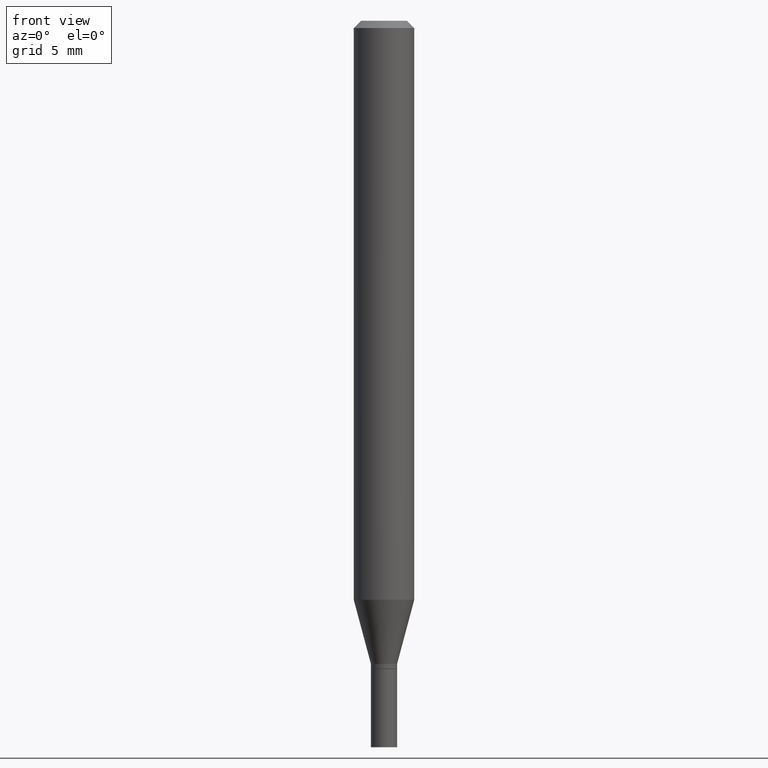
[diagram: clean part render]
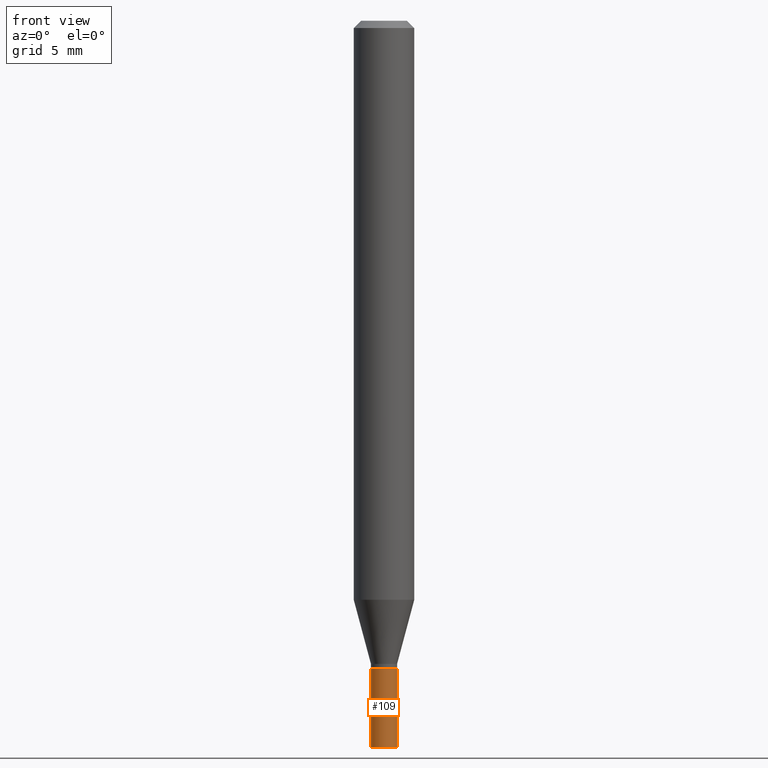
[diagram: same view with one face highlighted and labeled with its STEP entity id]
A machine part, front view. The second image highlights one B-rep face of the part: STEP entity #109.
In plain terms, the highlighted cylindrical surface (edge-blend (fillet) strip) has radius 0.6858 mm, axis along (-0, 0, 1).
Its self-contained STEP definition (entity closure, byte-faithful):
#2 = DIRECTION ( 'NONE',  ( 1.000000000000000000, -6.982962677686261189E-15, 0.000000000000000000 ) ) ;
#6 = CARTESIAN_POINT ( 'NONE',  ( 0.02699999999999999969, -5.425762000562247662E-15, -1.500000000000000222 ) ) ;
#11 = EDGE_LOOP ( 'NONE', ( #420, #334, #426, #277 ) ) ;
#15 = VERTEX_POINT ( 'NONE', #6 ) ;
#16 = CYLINDRICAL_SURFACE ( 'NONE', #410, 0.02699999999999999969 ) ;
#31 = AXIS2_PLACEMENT_3D ( 'NONE', #354, #360, #2 ) ;
#42 = DIRECTION ( 'NONE',  ( 1.000000000000000000, -6.982962677686261189E-15, 0.000000000000000000 ) ) ;
#72 = VECTOR ( 'NONE', #400, 39.37007874015748143 ) ;
#80 = CARTESIAN_POINT ( 'NONE',  ( -0.02699999999999999969, -4.762565481163196334E-15, -1.338000000000000078 ) ) ;
#109 = ADVANCED_FACE ( 'NONE', ( #187 ), #16, .T. ) ;
#112 = CIRCLE ( 'NONE', #369, 0.02699999999999999969 ) ;
#118 = VERTEX_POINT ( 'NONE', #170 ) ;
#131 = DIRECTION ( 'NONE',  ( -2.445468806185136597E-29, 3.491481338843145583E-15, 1.000000000000000000 ) ) ;
#170 = CARTESIAN_POINT ( 'NONE',  ( 0.02699999999999999969, -4.860142023669657629E-15, -1.338000000000000078 ) ) ;
#184 = EDGE_CURVE ( 'NONE', #15, #118, #272, .T. ) ;
#187 = FACE_OUTER_BOUND ( 'NONE', #11, .T. ) ;
#247 = LINE ( 'NONE', #383, #338 ) ;
#253 = EDGE_CURVE ( 'NONE', #324, #118, #112, .T. ) ;
#272 = LINE ( 'NONE', #416, #72 ) ;
#274 = CARTESIAN_POINT ( 'NONE',  ( 3.272037262675712888E-29, -4.671602031372128143E-15, -1.338000000000000078 ) ) ;
#277 = ORIENTED_EDGE ( 'NONE', *, *, #253, .F. ) ;
#305 = CARTESIAN_POINT ( 'NONE',  ( -0.02699999999999999969, -4.762565481163196334E-15, -1.500000000000000222 ) ) ;
#313 = VERTEX_POINT ( 'NONE', #305 ) ;
#316 = DIRECTION ( 'NONE',  ( -2.445468806185136597E-29, 3.491481338843145583E-15, 1.000000000000000000 ) ) ;
#324 = VERTEX_POINT ( 'NONE', #80 ) ;
#325 = DIRECTION ( 'NONE',  ( -2.445468806185136877E-29, 3.491481338843145188E-15, 1.000000000000000000 ) ) ;
#334 = ORIENTED_EDGE ( 'NONE', *, *, #417, .T. ) ;
#338 = VECTOR ( 'NONE', #325, 39.37007874015748143 ) ;
#341 = DIRECTION ( 'NONE',  ( 1.000000000000000000, -6.982962677686266711E-15, 4.876176775795935232E-29 ) ) ;
#354 = CARTESIAN_POINT ( 'NONE',  ( 3.668203209277704895E-29, -5.237222008264718177E-15, -1.500000000000000222 ) ) ;
#360 = DIRECTION ( 'NONE',  ( -2.445468806185136597E-29, 3.491481338843145583E-15, 1.000000000000000000 ) ) ;
#369 = AXIS2_PLACEMENT_3D ( 'NONE', #274, #316, #42 ) ;
#383 = CARTESIAN_POINT ( 'NONE',  ( -0.02699999999999999969, 1.918465386552270480E-16, -1.328112474368824466E-30 ) ) ;
#400 = DIRECTION ( 'NONE',  ( -2.445468806185136877E-29, 3.491481338843145188E-15, 1.000000000000000000 ) ) ;
#410 = AXIS2_PLACEMENT_3D ( 'NONE', #431, #131, #341 ) ;
#412 = EDGE_CURVE ( 'NONE', #313, #324, #247, .T. ) ;
#416 = CARTESIAN_POINT ( 'NONE',  ( 0.02699999999999999969, -1.885399922975291894E-16, 1.316567729464902510E-30 ) ) ;
#417 = EDGE_CURVE ( 'NONE', #313, #15, #418, .T. ) ;
#418 = CIRCLE ( 'NONE', #31, 0.02699999999999999969 ) ;
#420 = ORIENTED_EDGE ( 'NONE', *, *, #412, .F. ) ;
#426 = ORIENTED_EDGE ( 'NONE', *, *, #184, .T. ) ;
#431 = CARTESIAN_POINT ( 'NONE',  ( 0.000000000000000000, 0.000000000000000000, 0.000000000000000000 ) ) ;